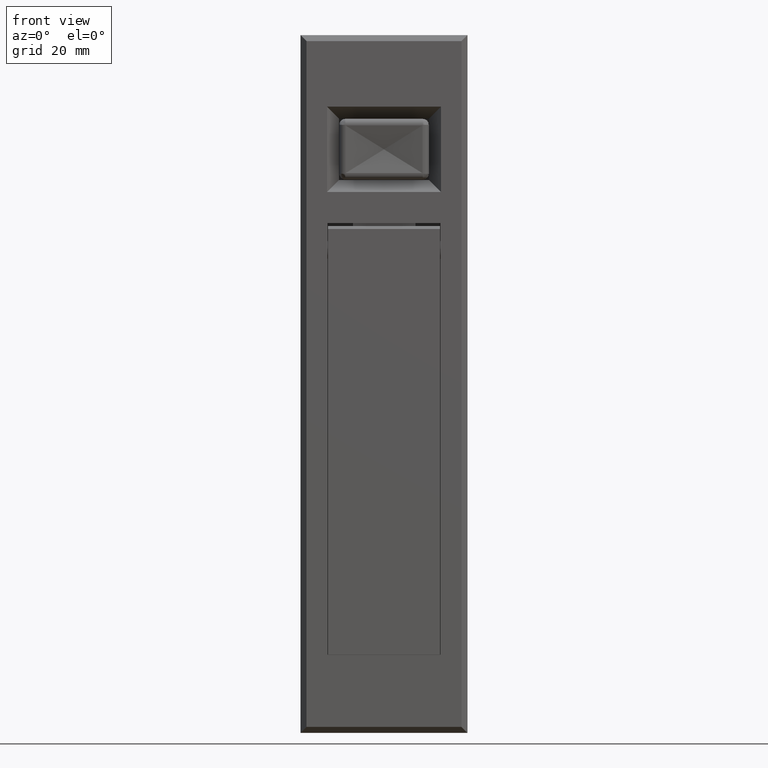
[diagram: clean part render]
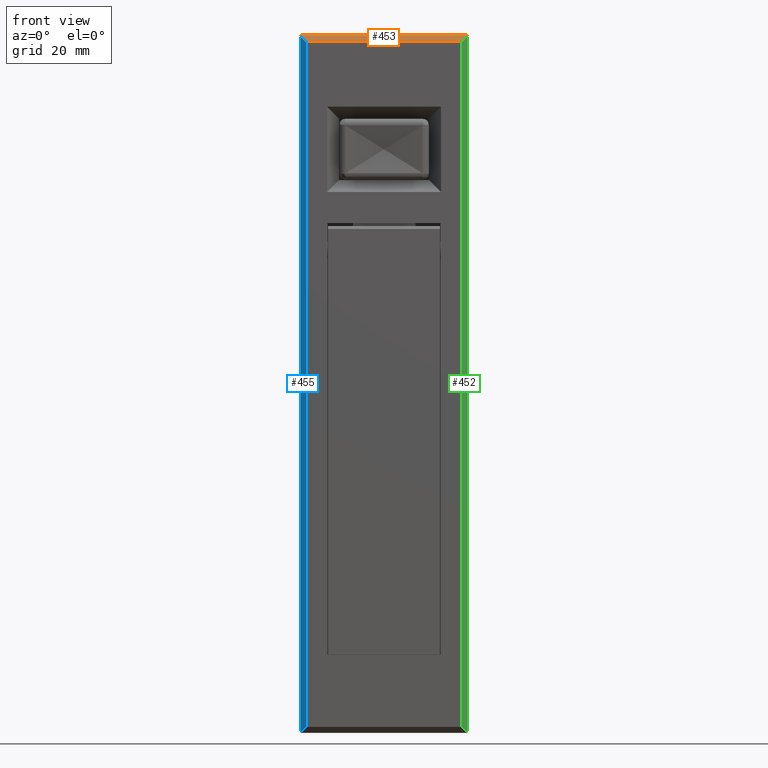
[diagram: same view with three faces highlighted in distinct colors, each labeled with its STEP entity id]
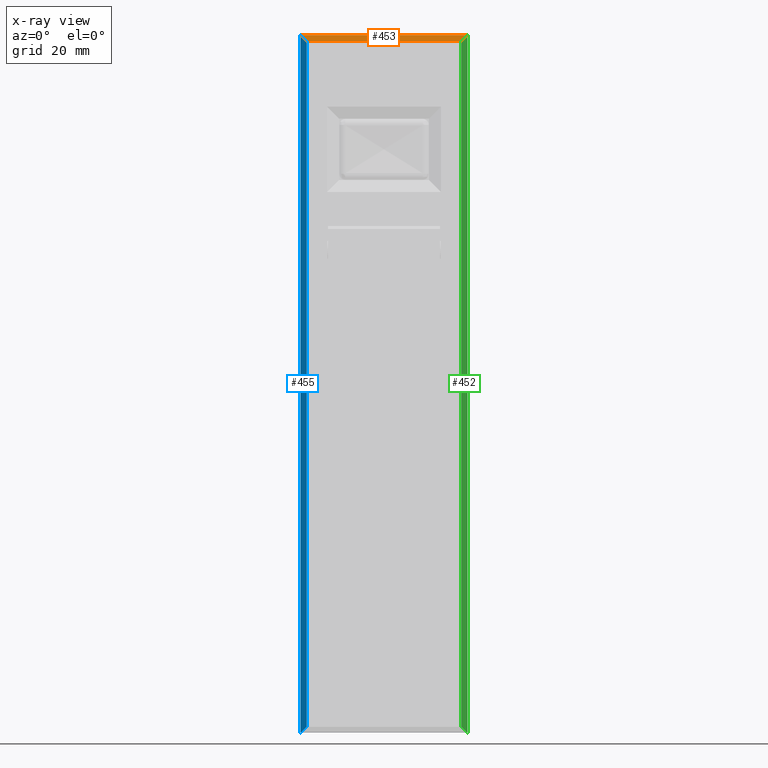
[diagram: x-ray of the same camera — body ghosted, the three highlighted faces saturated]
A machine part, front view with three faces highlighted in distinct colors.
The next image is the same camera in x-ray (body ghosted, the three faces saturated) — at least one of them is partly hidden behind the body in this view.
Their STEP definitions:

[orange] entity #453 — the highlighted planar face has unit normal (0, -0.7071, 0.7071).
#453=ADVANCED_FACE('',(#1891),#1890,.T.);
#1890=PLANE('',#4119);
#1891=FACE_OUTER_BOUND('',#4120,.T.);
#4116=CARTESIAN_POINT('',(-1.41000000000E+01,-1.68000000000E+01,3.49000000000E+01));
#4117=DIRECTION('',(-7.07106781187E-01,0.00000000000E+00,7.07106781187E-01));
#4118=DIRECTION('',(7.07106781187E-01,0.00000000000E+00,7.07106781187E-01));
#4119=AXIS2_PLACEMENT_3D('',#4116,#4117,#4118);
#4120=EDGE_LOOP('',(#5604,#5605,#5606,#5607));
#5604=ORIENTED_EDGE('',*,*,#6808,.T.);
#5605=ORIENTED_EDGE('',*,*,#6809,.F.);
#5606=ORIENTED_EDGE('',*,*,#6806,.F.);
#5607=ORIENTED_EDGE('',*,*,#6810,.F.);
#6806=EDGE_CURVE('',#9917,#9924,#9925,.T.);
#6808=EDGE_CURVE('',#9937,#9938,#9939,.T.);
#6809=EDGE_CURVE('',#9924,#9938,#9945,.T.);
#6810=EDGE_CURVE('',#9937,#9917,#9951,.T.);
#9917=VERTEX_POINT('',#13767);
#9924=VERTEX_POINT('',#13771);
#9925=LINE('',#13772,#13773);
#9937=VERTEX_POINT('',#13778);
#9938=VERTEX_POINT('',#13779);
#9939=LINE('',#13780,#13781);
#9945=LINE('',#13783,#13784);
#9951=LINE('',#13786,#13787);
#13767=CARTESIAN_POINT('',(-1.30000000000E+01,-1.40000000000E+01,3.60000000000E+01));
#13771=CARTESIAN_POINT('',(-1.40000000000E+01,-1.30000000000E+01,3.50000000000E+01));
#13772=CARTESIAN_POINT('',(-1.30000000000E+01,-1.40000000000E+01,3.60000000000E+01));
#13773=VECTOR('',#13774,1.73205080757E+00);
#13774=DIRECTION('',(-5.77350269190E-01,5.77350269190E-01,-5.77350269190E-01));
#13778=CARTESIAN_POINT('',(-1.30000000000E+01,1.40000000000E+01,3.60000000000E+01));
#13779=CARTESIAN_POINT('',(-1.40000000000E+01,1.30000000000E+01,3.50000000000E+01));
#13780=CARTESIAN_POINT('',(-1.30000000000E+01,1.40000000000E+01,3.60000000000E+01));
#13781=VECTOR('',#13782,1.73205080757E+00);
#13782=DIRECTION('',(-5.77350269190E-01,-5.77350269190E-01,-5.77350269190E-01));
#13783=CARTESIAN_POINT('',(-1.40000000000E+01,-1.30000000000E+01,3.50000000000E+01));
#13784=VECTOR('',#13785,2.60000000000E+01);
#13785=DIRECTION('',(0.00000000000E+00,1.00000000000E+00,0.00000000000E+00));
#13786=CARTESIAN_POINT('',(-1.30000000000E+01,1.40000000000E+01,3.60000000000E+01));
#13787=VECTOR('',#13788,2.80000000000E+01);
#13788=DIRECTION('',(4.31400946711E-15,-1.00000000000E+00,0.00000000000E+00));

[blue] entity #455 — the highlighted planar face has unit normal (-0.7071, -0.7071, -0).
#455=ADVANCED_FACE('',(#1911),#1910,.T.);
#1910=PLANE('',#4129);
#1911=FACE_OUTER_BOUND('',#4130,.T.);
#4126=CARTESIAN_POINT('',(-1.29000000000E+01,1.41000000000E+01,-9.09998000000E+01));
#4127=DIRECTION('',(-7.07106781187E-01,7.07106781187E-01,-2.14733378553E-16));
#4128=DIRECTION('',(-7.07106781187E-01,-7.07106781187E-01,-2.46519032882E-32));
#4129=AXIS2_PLACEMENT_3D('',#4126,#4127,#4128);
#4130=EDGE_LOOP('',(#5612,#5613,#5614,#5615));
#5612=ORIENTED_EDGE('',*,*,#6808,.F.);
#5613=ORIENTED_EDGE('',*,*,#6814,.F.);
#5614=ORIENTED_EDGE('',*,*,#6811,.F.);
#5615=ORIENTED_EDGE('',*,*,#6815,.F.);
#6808=EDGE_CURVE('',#9937,#9938,#9939,.T.);
#6811=EDGE_CURVE('',#9957,#9958,#9959,.T.);
#6814=EDGE_CURVE('',#9958,#9937,#9977,.T.);
#6815=EDGE_CURVE('',#9938,#9957,#9983,.T.);
#9937=VERTEX_POINT('',#13778);
#9938=VERTEX_POINT('',#13779);
#9939=LINE('',#13780,#13781);
#9957=VERTEX_POINT('',#13789);
#9958=VERTEX_POINT('',#13790);
#9959=LINE('',#13791,#13792);
#9977=LINE('',#13800,#13801);
#9983=LINE('',#13803,#13804);
#13778=CARTESIAN_POINT('',(-1.30000000000E+01,1.40000000000E+01,3.60000000000E+01));
#13779=CARTESIAN_POINT('',(-1.40000000000E+01,1.30000000000E+01,3.50000000000E+01));
#13780=CARTESIAN_POINT('',(-1.30000000000E+01,1.40000000000E+01,3.60000000000E+01));
#13781=VECTOR('',#13782,1.73205080757E+00);
#13782=DIRECTION('',(-5.77350269190E-01,-5.77350269190E-01,-5.77350269190E-01));
#13789=CARTESIAN_POINT('',(-1.40000000000E+01,1.30000000000E+01,-7.99998000000E+01));
#13790=CARTESIAN_POINT('',(-1.30000000000E+01,1.40000000000E+01,-8.09998000000E+01));
#13791=CARTESIAN_POINT('',(-1.40000000000E+01,1.30000000000E+01,-7.99998000000E+01));
#13792=VECTOR('',#13793,1.73205080757E+00);
#13793=DIRECTION('',(5.77350269190E-01,5.77350269190E-01,-5.77350269190E-01));
#13800=CARTESIAN_POINT('',(-1.30000000000E+01,1.40000000000E+01,-8.09998000000E+01));
#13801=VECTOR('',#13802,1.16999800000E+02);
#13802=DIRECTION('',(0.00000000000E+00,0.00000000000E+00,1.00000000000E+00));
#13803=CARTESIAN_POINT('',(-1.40000000000E+01,1.30000000000E+01,3.50000000000E+01));
#13804=VECTOR('',#13805,1.14999800000E+02);
#13805=DIRECTION('',(0.00000000000E+00,0.00000000000E+00,-1.00000000000E+00));

[green] entity #452 — the highlighted planar face has unit normal (0.7071, -0.7071, 0).
#452=ADVANCED_FACE('',(#1881),#1880,.T.);
#1880=PLANE('',#4114);
#1881=FACE_OUTER_BOUND('',#4115,.T.);
#4111=CARTESIAN_POINT('',(-1.41000000000E+01,-1.29000000000E+01,-9.09998000000E+01));
#4112=DIRECTION('',(-7.07106781187E-01,-7.07106781187E-01,4.88030405803E-17));
#4113=DIRECTION('',(7.07106781187E-01,-7.07106781187E-01,0.00000000000E+00));
#4114=AXIS2_PLACEMENT_3D('',#4111,#4112,#4113);
#4115=EDGE_LOOP('',(#5600,#5601,#5602,#5603));
#5600=ORIENTED_EDGE('',*,*,#6804,.T.);
#5601=ORIENTED_EDGE('',*,*,#6805,.F.);
#5602=ORIENTED_EDGE('',*,*,#6806,.T.);
#5603=ORIENTED_EDGE('',*,*,#6807,.F.);
#6804=EDGE_CURVE('',#9909,#9910,#9911,.T.);
#6805=EDGE_CURVE('',#9917,#9910,#9918,.T.);
#6806=EDGE_CURVE('',#9917,#9924,#9925,.T.);
#6807=EDGE_CURVE('',#9909,#9924,#9931,.T.);
#9909=VERTEX_POINT('',#13762);
#9910=VERTEX_POINT('',#13763);
#9911=LINE('',#13764,#13765);
#9917=VERTEX_POINT('',#13767);
#9918=LINE('',#13768,#13769);
#9924=VERTEX_POINT('',#13771);
#9925=LINE('',#13772,#13773);
#9931=LINE('',#13775,#13776);
#13762=CARTESIAN_POINT('',(-1.40000000000E+01,-1.30000000000E+01,-7.99998000000E+01));
#13763=CARTESIAN_POINT('',(-1.30000000000E+01,-1.40000000000E+01,-8.09998000000E+01));
#13764=CARTESIAN_POINT('',(-1.40000000000E+01,-1.30000000000E+01,-7.99998000000E+01));
#13765=VECTOR('',#13766,1.73205080757E+00);
#13766=DIRECTION('',(5.77350269190E-01,-5.77350269190E-01,-5.77350269190E-01));
#13767=CARTESIAN_POINT('',(-1.30000000000E+01,-1.40000000000E+01,3.60000000000E+01));
#13768=CARTESIAN_POINT('',(-1.30000000000E+01,-1.40000000000E+01,3.60000000000E+01));
#13769=VECTOR('',#13770,1.16999800000E+02);
#13770=DIRECTION('',(-1.03241428686E-15,0.00000000000E+00,-1.00000000000E+00));
#13771=CARTESIAN_POINT('',(-1.40000000000E+01,-1.30000000000E+01,3.50000000000E+01));
#13772=CARTESIAN_POINT('',(-1.30000000000E+01,-1.40000000000E+01,3.60000000000E+01));
#13773=VECTOR('',#13774,1.73205080757E+00);
#13774=DIRECTION('',(-5.77350269190E-01,5.77350269190E-01,-5.77350269190E-01));
#13775=CARTESIAN_POINT('',(-1.40000000000E+01,-1.30000000000E+01,-7.99998000000E+01));
#13776=VECTOR('',#13777,1.14999800000E+02);
#13777=DIRECTION('',(0.00000000000E+00,0.00000000000E+00,1.00000000000E+00));